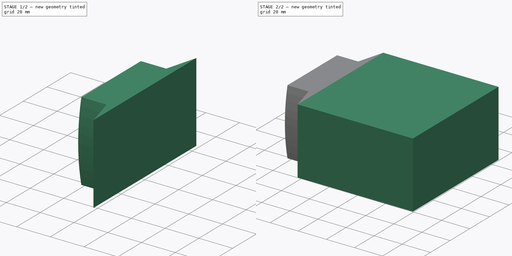
[diagram: build sequence overview — one tinted view per stage of 2, left to right]
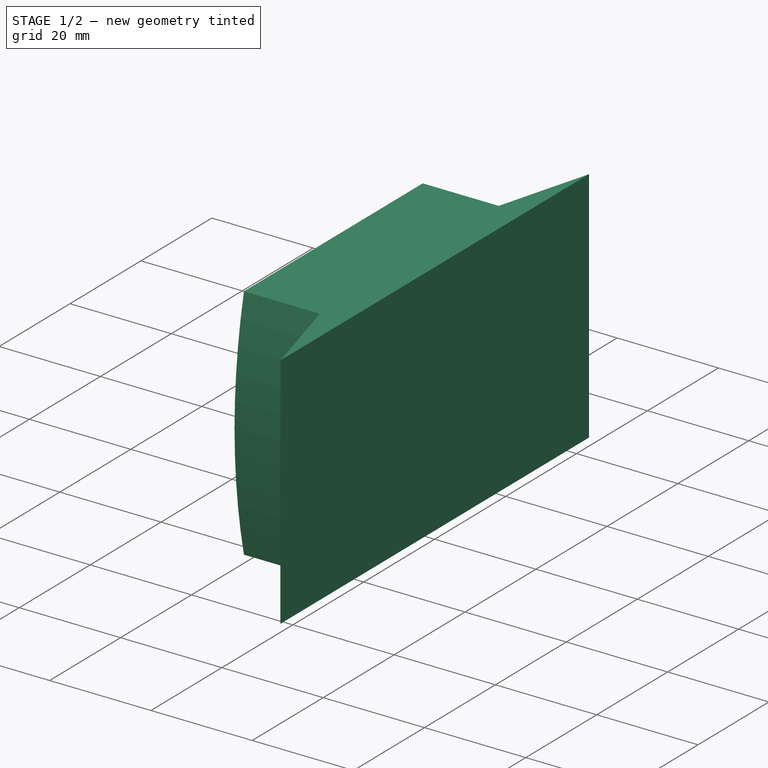
[diagram: stage 1 of 2 — iso view after this stage's code; geometry added in this stage tinted green]
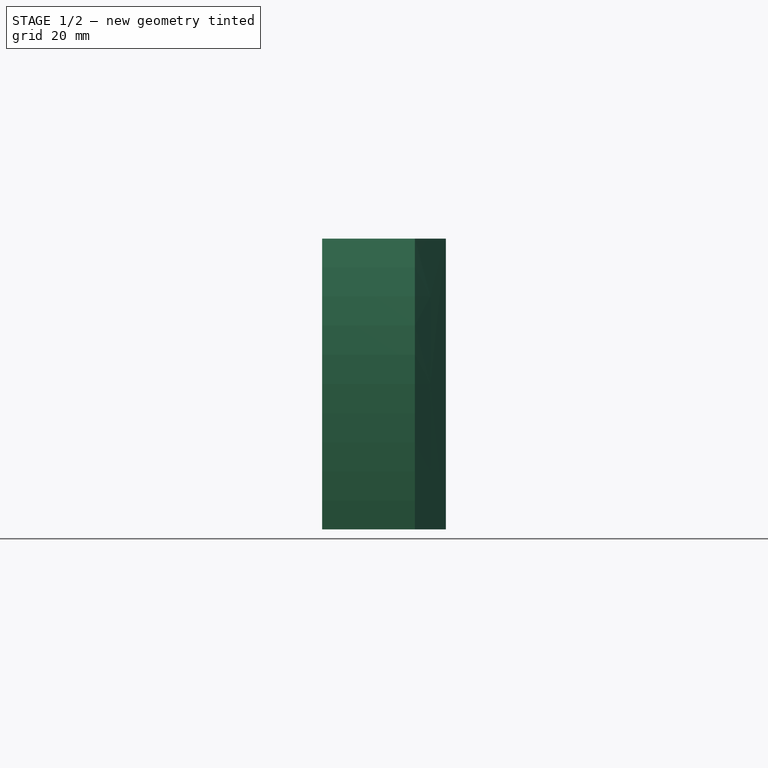
[diagram: stage 1 of 2 — front view after this stage's code; geometry added in this stage tinted green]
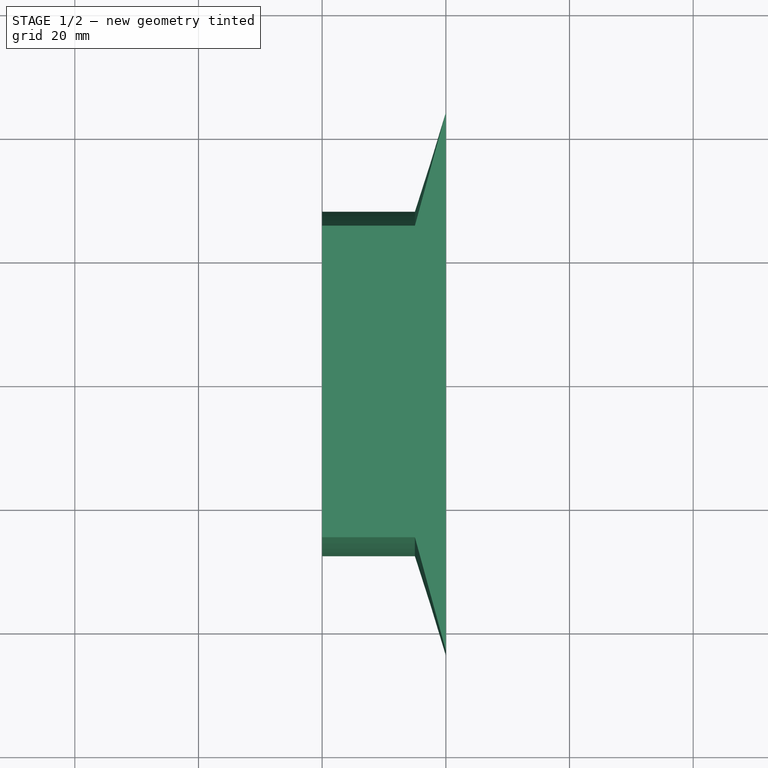
[diagram: stage 1 of 2 — top view after this stage's code; geometry added in this stage tinted green]
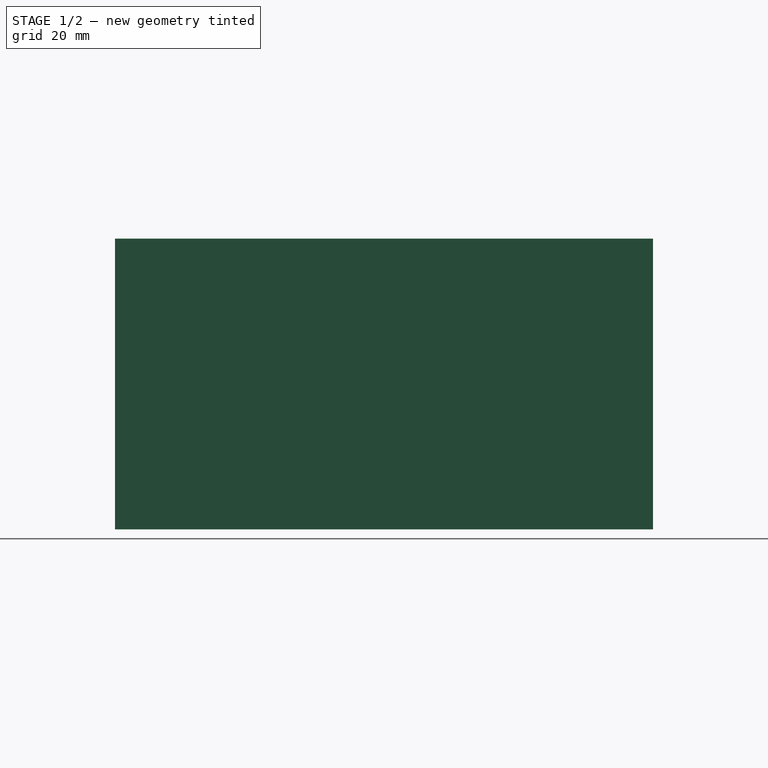
[diagram: stage 1 of 2 — right view after this stage's code; geometry added in this stage tinted green]
FCSTD DOCUMENT  (FreeCAD 0.18R16093 (Git))
Label: prototype_power_cord_ext
License: All rights reserved
LicenseURL: http://en.wikipedia.org/wiki/All_rights_reserved
objects: Sketcher::SketchObject×4, PartDesign::Pad×2, PartDesign::AdditiveLoft×1, PartDesign::Body×1
note: 11 computed .brp shape members not serialized (recipe doc carries the construction recipe); baked Part::Feature solids carry a one-line shape summary decoded from their .brp

FEATURE [Sketcher::SketchObject] Sketch004
  MapMode = 5
  Placement = pos=(0,0,0) rot=(0.57735,0.57735,0.57735;2.0944rad)
  Support = -> [YZ_Plane001]
  sketch-geometry (6):
    g0: LineSegment StartX=-25.2 StartY=23.5 StartZ=0 EndX=25.2 EndY=23.5 EndZ=0
    g1: LineSegment StartX=25.2 StartY=-23.5 StartZ=0 EndX=-25.2 EndY=-23.5 EndZ=0
    g2: ArcOfCircle CenterX=-77.2764 CenterY=1.32e-14 CenterZ=0 NormalX=0 NormalY=0 NormalZ=1 AngleXU=0 Radius=105.136 StartAngle=6.05776 EndAngle=6.50861
    g3: ArcOfCircle CenterX=77.2764 CenterY=8.1e-15 CenterZ=0 NormalX=0 NormalY=0 NormalZ=1 AngleXU=0 Radius=105.136 StartAngle=2.91617 EndAngle=3.36702
    g4: GeomPoint X=-27.86 Y=0 Z=0
    g5: GeomPoint X=27.86 Y=0 Z=0
  constraints (14):
    c: Symmetric(g0,g1,g-1)
    c: Symmetric(g0,g0,g-2)
    c: Symmetric(g1,g0,g-1)
    c: DistanceX(g0,g0) = 50.4
    c: DistanceY(g1,g0) = 47
    c: Coincident(g2,g0)
    c: Coincident(g2,g1)
    c: Coincident(g3,g0)
    c: Coincident(g3,g1)
    c: PointOnObject(g4,g3)
    c: PointOnObject(g4,g-1)
    c: PointOnObject(g5,g2)
    c: DistanceX(g4,g5) = 55.72
    c: Symmetric(g5,g4,g-2)
FEATURE [PartDesign::Pad] Pad002
  Length = 15
  Length2 = 100
  Placement = pos=(0,0,0) rot=(0.57735,0.57735,0.57735;2.0944rad)
  Profile = -> Sketch004
  Type = 0
FEATURE [Sketcher::SketchObject] Sketch005
  AttachmentOffset = pos=(0,0,20) rot=(0,0,1;0rad)
  ExternalGeometry = -> [Sketch004]
  MapMode = 5
  Placement = pos=(20,-4.4e-15,4.4e-15) rot=(0.57735,0.57735,0.57735;2.0944rad)
  Support = -> [YZ_Plane001]
  sketch-geometry (4):
    g0: LineSegment StartX=-43.5 StartY=23.5 StartZ=0 EndX=43.5 EndY=23.5 EndZ=0
    g1: LineSegment StartX=43.5 StartY=23.5 StartZ=0 EndX=43.5 EndY=-23.5 EndZ=0
    g2: LineSegment StartX=43.5 StartY=-23.5 StartZ=0 EndX=-43.5 EndY=-23.5 EndZ=0
    g3: LineSegment StartX=-43.5 StartY=-23.5 StartZ=0 EndX=-43.5 EndY=23.5 EndZ=0
  constraints (10):
    c: Coincident(g0,g1)
    c: Coincident(g1,g2)
    c: Coincident(g2,g3)
    c: Coincident(g3,g0)
    c: Horizontal(g2)
    c: Vertical(g1)
    c: Symmetric(g0,g0,g-2)
    c: Symmetric(g2,g0,g-1)
    c: DistanceX(g0,g0) = 87
    c: Horizontal(g0,g-5)
FEATURE [Sketcher::SketchObject] Sketch006
  ExternalGeometry = -> [Pad002]
  MapMode = 5
  Placement = pos=(15,-3.3e-15,3.3e-15) rot=(0.57735,0.57735,0.57735;2.0944rad)
  Support = -> [Pad002]
  sketch-geometry (6):
    g0: LineSegment StartX=-25.2 StartY=23.5 StartZ=0 EndX=25.2 EndY=23.5 EndZ=0
    g1: LineSegment StartX=-25.2 StartY=-23.5 StartZ=0 EndX=25.2 EndY=-23.5 EndZ=0
    g2: ArcOfCircle CenterX=-77.2764 CenterY=4.05e-14 CenterZ=0 NormalX=0 NormalY=0 NormalZ=1 AngleXU=0 Radius=105.136 StartAngle=6.05776 EndAngle=6.50861
    g3: GeomPoint X=27.86 Y=0 Z=0
    g4: GeomPoint X=27.86 Y=0 Z=0
    g5: ArcOfCircle CenterX=77.2764 CenterY=-1.06e-13 CenterZ=0 NormalX=0 NormalY=0 NormalZ=1 AngleXU=0 Radius=105.136 StartAngle=2.91617 EndAngle=3.36702
  constraints (13):
    c: Coincident(g0,g-5)
    c: Coincident(g0,g-4)
    c: Coincident(g1,g-6)
    c: Coincident(g1,g-6)
    c: Coincident(g2,g0)
    c: Coincident(g2,g1)
    c: PointOnObject(g3,g-3)
    c: PointOnObject(g3,g-1)
    c: PointOnObject(g4,g2)
    c: Coincident(g3,g4)
    c: Coincident(g5,g0)
    c: Coincident(g5,g1)
    c: Symmetric(g2,g5,g-2)
FEATURE [PartDesign::AdditiveLoft] AdditiveLoft001
  BaseFeature = -> Pad002
  Closed = false
  Placement = pos=(0,0,0) rot=(0.57735,0.57735,0.57735;2.0944rad)
  Profile = -> Sketch006
  Ruled = false
  Sections = -> [Sketch005]
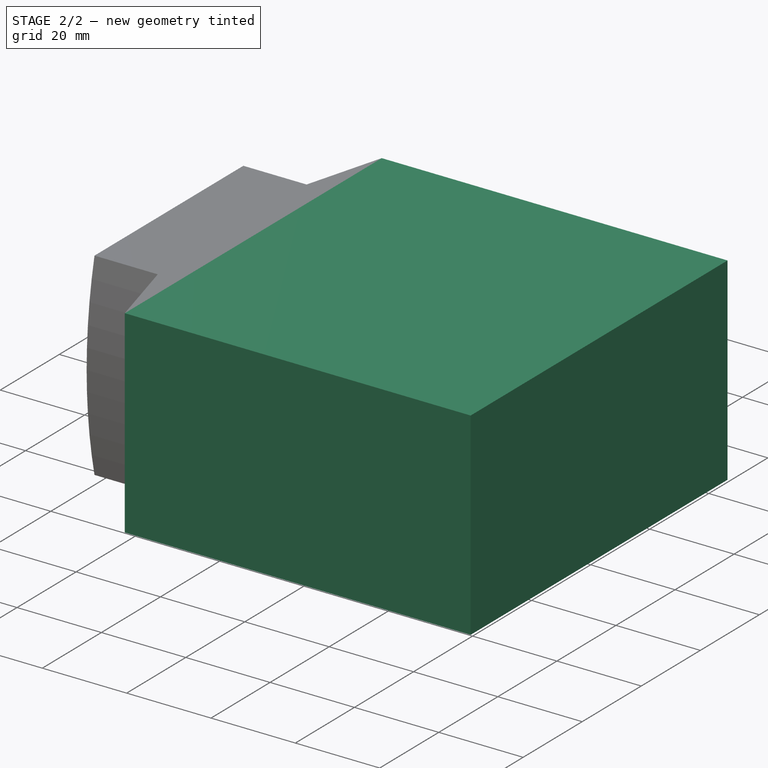
[diagram: stage 2 of 2 — iso view after this stage's code; geometry added in this stage tinted green]
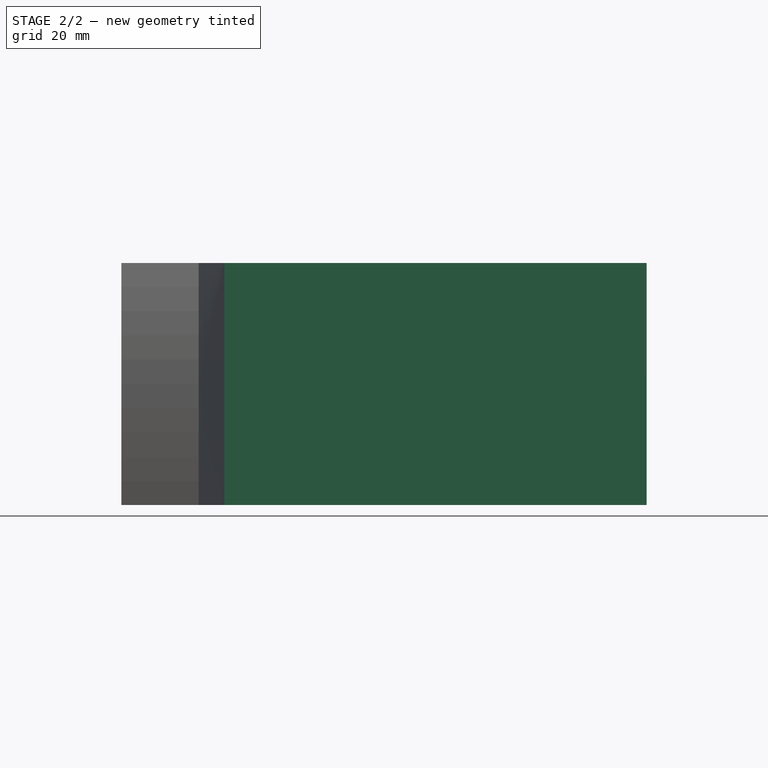
[diagram: stage 2 of 2 — front view after this stage's code; geometry added in this stage tinted green]
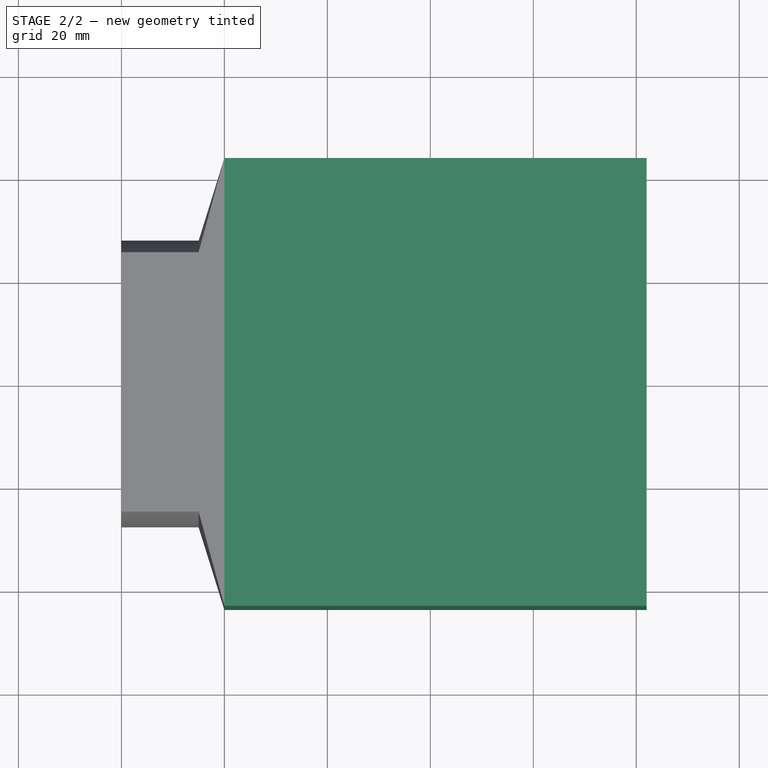
[diagram: stage 2 of 2 — top view after this stage's code; geometry added in this stage tinted green]
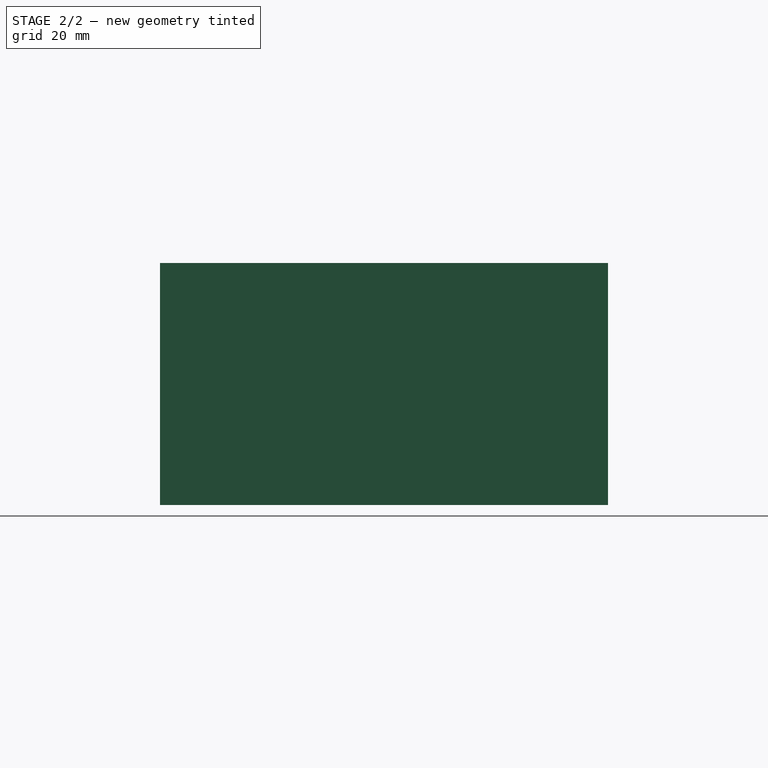
[diagram: stage 2 of 2 — right view after this stage's code; geometry added in this stage tinted green]
FEATURE [Sketcher::SketchObject] Sketch007
  ExternalGeometry = -> [AdditiveLoft001]
  MapMode = 5
  Placement = pos=(20,-5e-15,9e-15) rot=(0.57735,0.57735,0.57735;2.0944rad)
  Support = -> [AdditiveLoft001]
  sketch-geometry (4):
    g0: LineSegment StartX=-43.5 StartY=23.5 StartZ=0 EndX=43.5 EndY=23.5 EndZ=0
    g1: LineSegment StartX=43.5 StartY=23.5 StartZ=0 EndX=43.5 EndY=-23.5 EndZ=0
    g2: LineSegment StartX=43.5 StartY=-23.5 StartZ=0 EndX=-43.5 EndY=-23.5 EndZ=0
    g3: LineSegment StartX=-43.5 StartY=-23.5 StartZ=0 EndX=-43.5 EndY=23.5 EndZ=0
  constraints (9):
    c: Coincident(g0,g1)
    c: Coincident(g1,g2)
    c: Coincident(g2,g3)
    c: Coincident(g3,g0)
    c: Horizontal(g2)
    c: Vertical(g3)
    c: Symmetric(g0,g0,g-2)
    c: Symmetric(g1,g0,g-1)
    c: Coincident(g0,g-4)
FEATURE [PartDesign::Pad] Pad003
  BaseFeature = -> AdditiveLoft001
  Length = 82
  Length2 = 100
  Placement = pos=(0,0,0) rot=(0.57735,0.57735,0.57735;2.0944rad)
  Profile = -> Sketch007
  Type = 0
FEATURE [PartDesign::Body] Body001  label="Original"
  Group = -> [Sketch004,Pad002,Sketch006,Sketch005,AdditiveLoft001,Sketch007,Pad003]
  Origin = -> Origin001
  Tip = -> Pad003
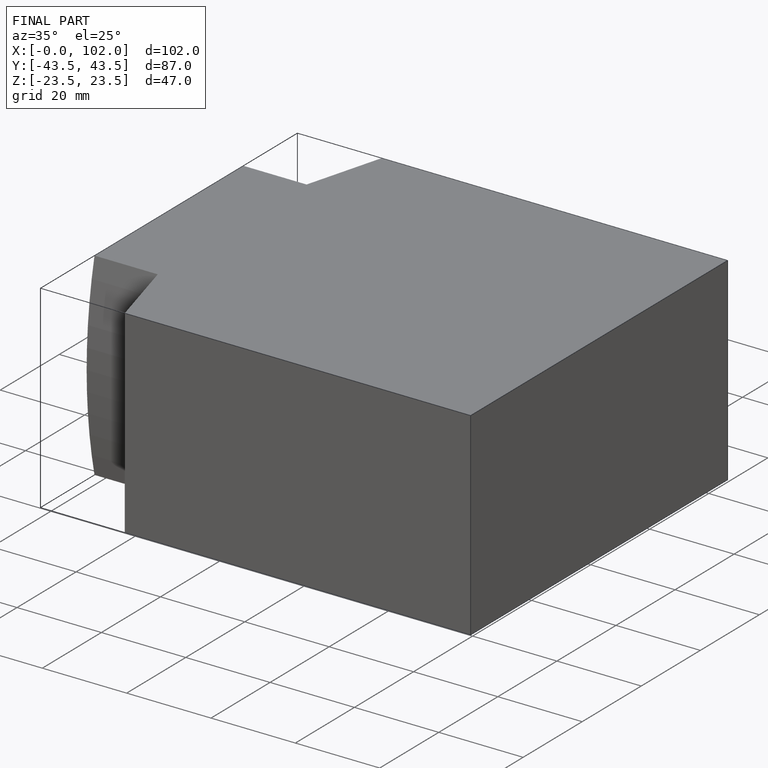
[diagram: finished part — iso view with bounding-box wireframe]
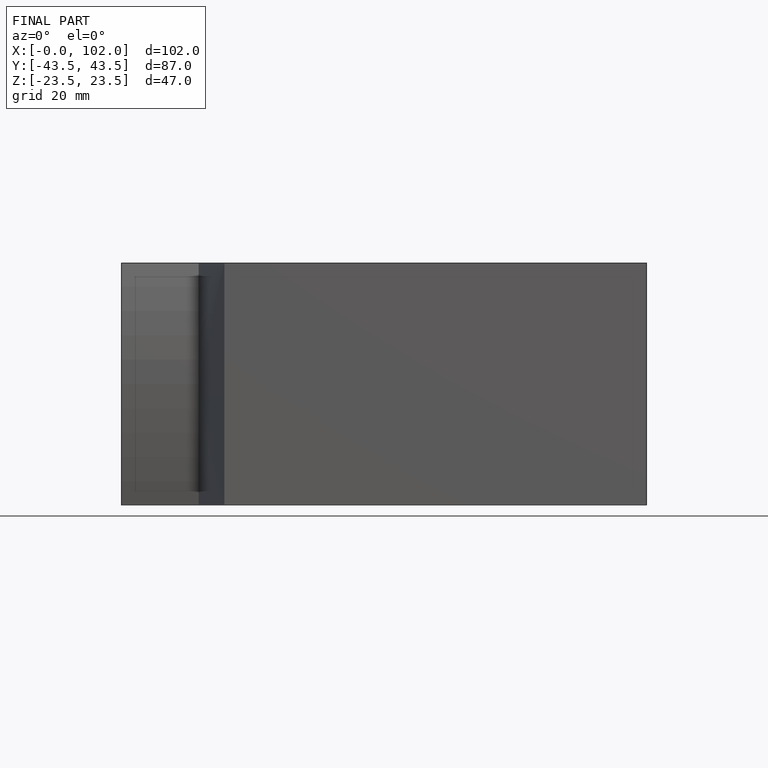
[diagram: finished part — front view with bounding-box wireframe]
